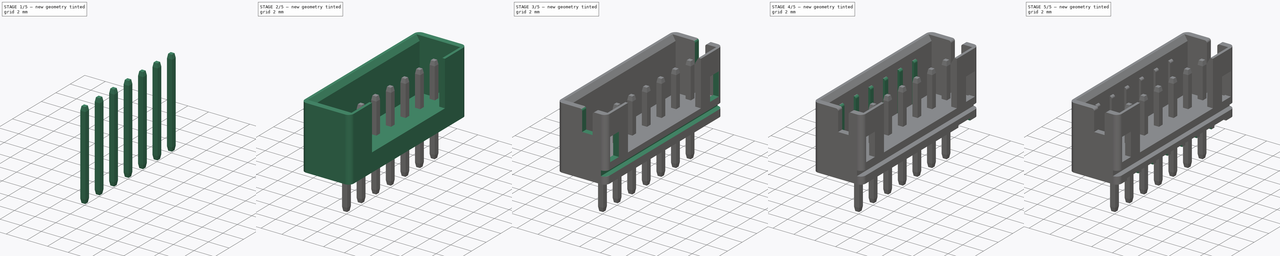
[diagram: build sequence overview — one tinted view per stage of 5, left to right]
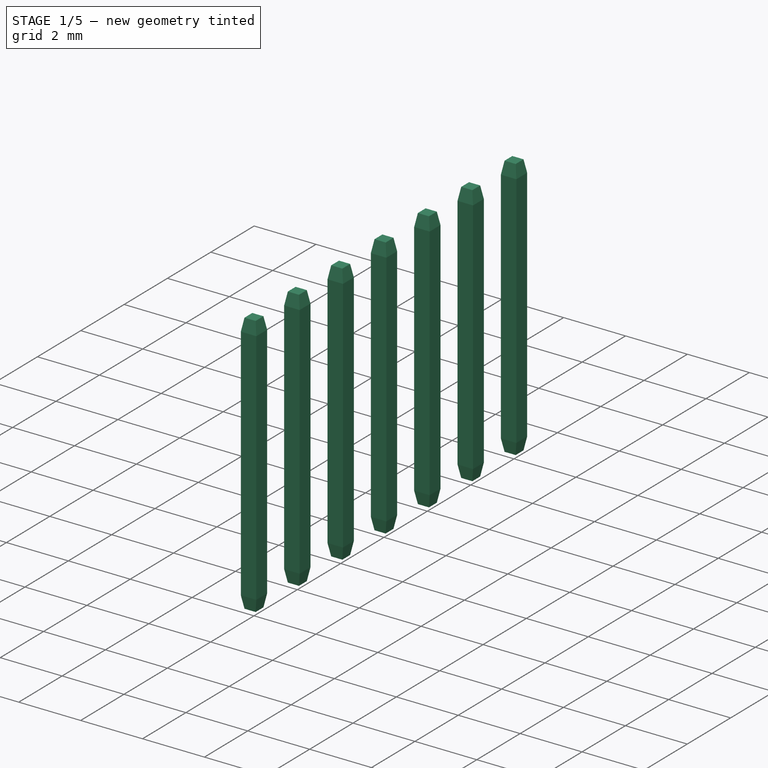
[diagram: stage 1 of 5 — iso view after this stage's code; geometry added in this stage tinted green]
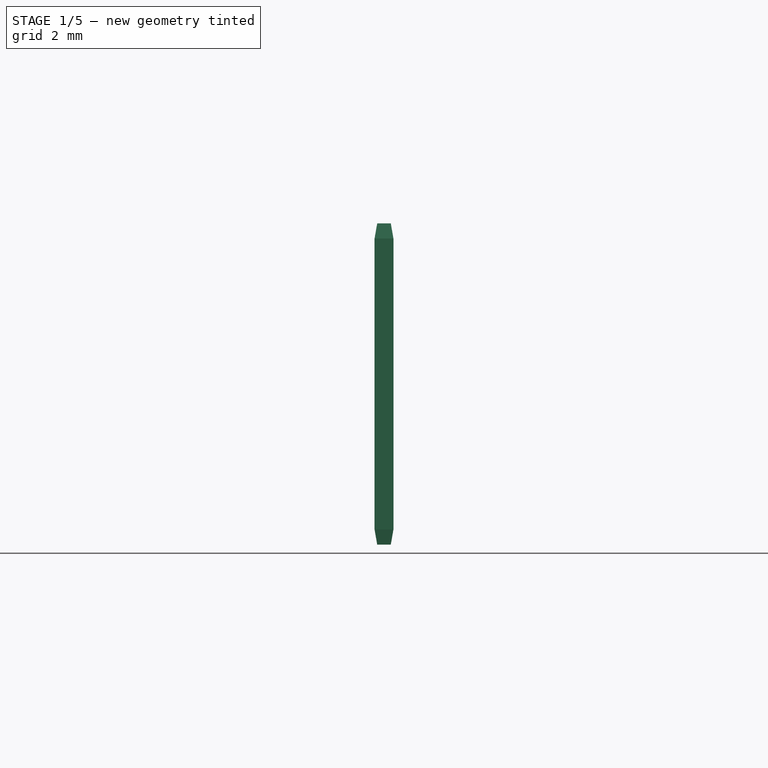
[diagram: stage 1 of 5 — front view after this stage's code; geometry added in this stage tinted green]
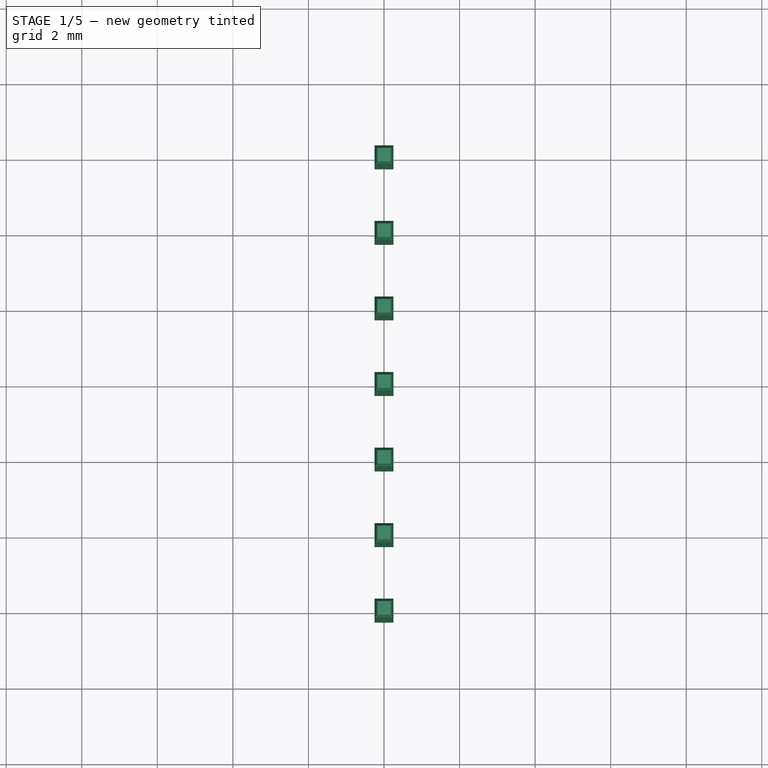
[diagram: stage 1 of 5 — top view after this stage's code; geometry added in this stage tinted green]
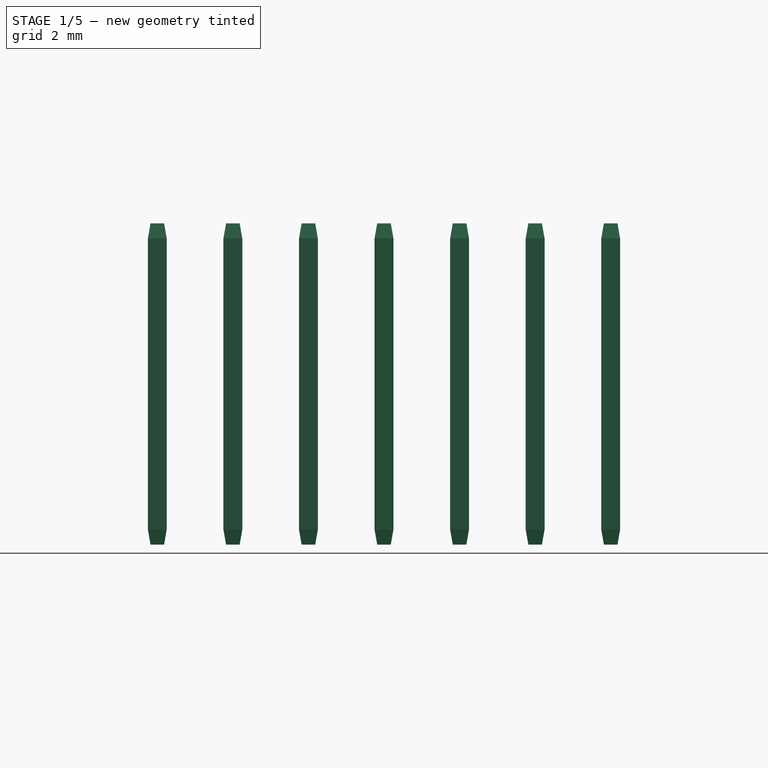
[diagram: stage 1 of 5 — right view after this stage's code; geometry added in this stage tinted green]
FCSTD DOCUMENT  (FreeCAD 1.0R38641 +468 (Git))
Label: 440054-1
License: All rights reserved
objects: Sketcher::SketchObject×12, PartDesign::Pocket×9, PartDesign::Pad×3, PartDesign::LinearPattern×3, PartDesign::Body×2, Spreadsheet::Sheet×1, PartDesign::Plane×1, PartDesign::Line×1, PartDesign::Chamfer×1, Part::FeaturePython×1
note: 74 computed .brp shape members not serialized (recipe doc carries the construction recipe); baked Part::Feature solids carry a one-line shape summary decoded from their .brp

FEATURE [PartDesign::Body] Body
  AllowCompound = false
  Group = -> [DatumPlane,DatumLine,Sketch001,Pad,Sketch,Pocket,Sketch003,Pocket001,Sketch004,Pocket002,Sketch005,Pocket003,Sketch006,Pocket004,Sketch007,Pocket005,Sketch008,Pad001,LinearPattern,Sketch009,Pocket006,Sketch010,Pocket007,LinearPattern001,Sketch011,Pocket008,LinearPattern002]
  Origin = -> Origin
  Tip = -> LinearPattern002
FEATURE [Sketcher::SketchObject] Sketch013
  ArcFitTolerance = 0
  AttachmentSupport = -> [XY_Plane001]
  FullyConstrained = true
  MakeInternals = false
  MapMode = 5
  sketch-geometry (4):
    g0: LineSegment StartX=-0.25 StartY=0.25 StartZ=0 EndX=0.25 EndY=0.25 EndZ=0
    g1: LineSegment StartX=0.25 StartY=0.25 StartZ=0 EndX=0.25 EndY=-0.25 EndZ=0
    g2: LineSegment StartX=0.25 StartY=-0.25 StartZ=0 EndX=-0.25 EndY=-0.25 EndZ=0
    g3: LineSegment StartX=-0.25 StartY=-0.25 StartZ=0 EndX=-0.25 EndY=0.25 EndZ=0
  constraints (11):
    c: Coincident(g0,g1)
    c: Coincident(g1,g2)
    c: Coincident(g2,g3)
    c: Coincident(g3,g0)
    c: Horizontal(g0)
    c: Horizontal(g2)
    c: Vertical(g1)
    c: Vertical(g3)
    c: Equal(g1,g0)
    c: Symmetric(g0,g2,g-1)
    c: DistanceX(g0,g0) = 0.5
FEATURE [PartDesign::Pad] Pad002
  Direction = (0,0,1)
  Length = 5.1
  Length2 = 3.4
  Profile = -> Sketch013
  ReferenceAxis = -> Sketch013 [N_Axis]
  Suppressed = false
  Type = 4
FEATURE [PartDesign::Chamfer] Chamfer
  Angle = 45
  Base = -> Pad002 [Face6,Face5]
  BaseFeature = -> Pad002
  ChamferType = 1
  FlipDirection = false
  Size = 0.4
  Size2 = 0.07
  SupportTransform = false
  Suppressed = false
  UseAllEdges = false
FEATURE [PartDesign::Body] Body001
  AllowCompound = false
  Group = -> [Sketch013,Pad002,Chamfer]
  Origin = -> Origin001
  Tip = -> Chamfer
FEATURE [Part::FeaturePython] Array  # Draft array (typed FeaturePython)
  Angle = 360
  ArrayType = 0
  Axis = (0,0,1)
  Base = -> Body001
  Center = (0,0,0)
  Count = 7
  Fuse = false
  IntervalAxis = (0,0,0)
  IntervalX = (100,0,0)
  IntervalY = (0,-2,0)
  IntervalZ = (0,0,100)
  NumberCircles = 3
  NumberPolar = 5
  NumberX = 1
  NumberY = 7
  NumberZ = 1
  RadialDistance = 50
  Symmetry = 1
  TangentialDistance = 25
  expr: .IntervalY.y = -<<Master>>.pin_pitch
  expr: NumberY = <<Master>>.pins
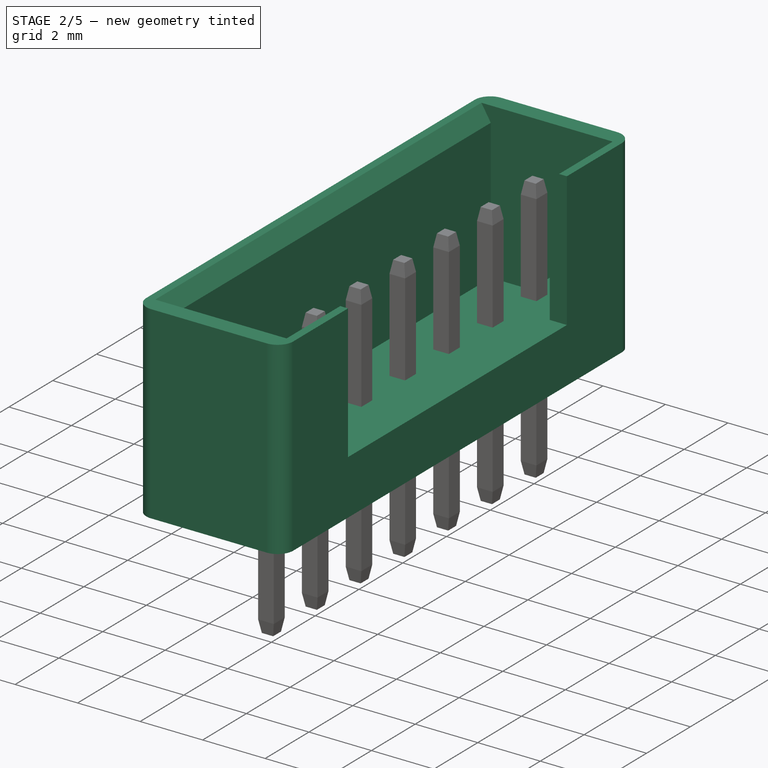
[diagram: stage 2 of 5 — iso view after this stage's code; geometry added in this stage tinted green]
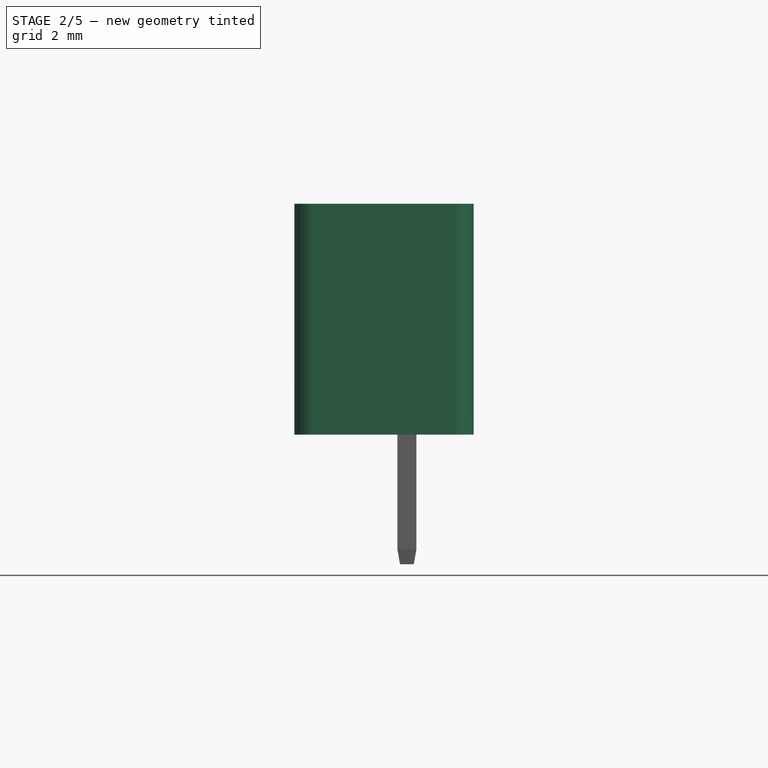
[diagram: stage 2 of 5 — front view after this stage's code; geometry added in this stage tinted green]
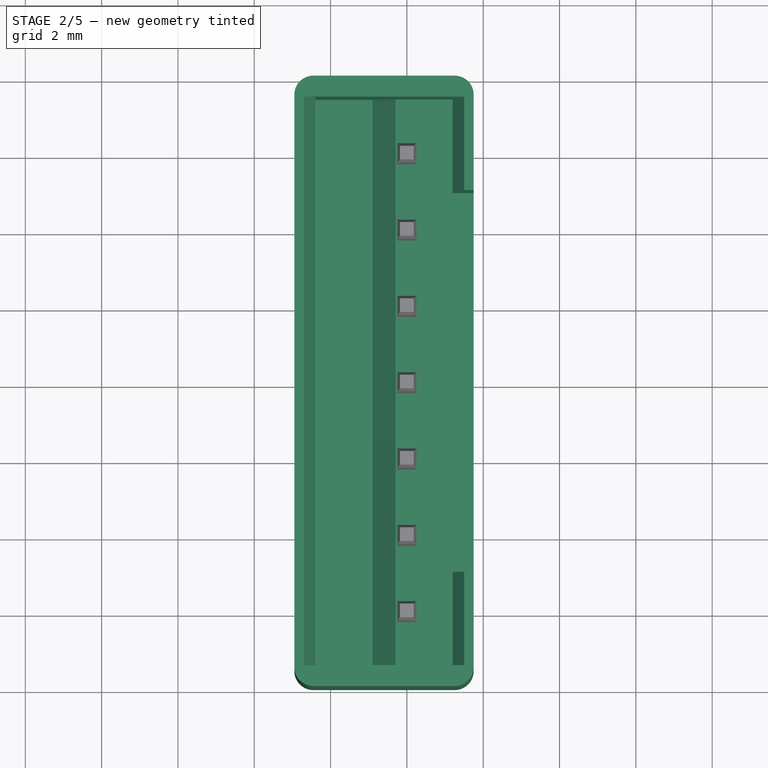
[diagram: stage 2 of 5 — top view after this stage's code; geometry added in this stage tinted green]
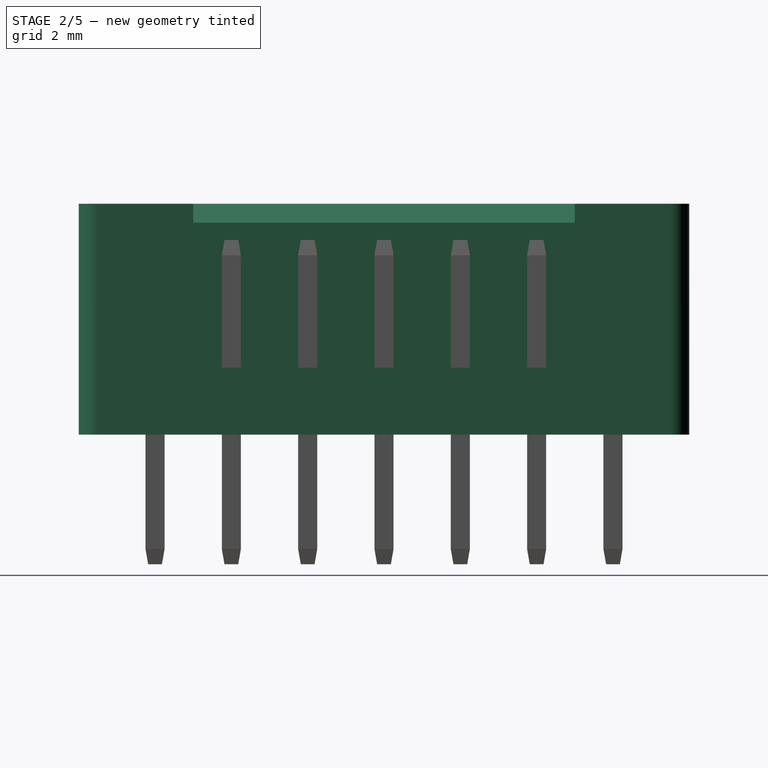
[diagram: stage 2 of 5 — right view after this stage's code; geometry added in this stage tinted green]
FEATURE [Spreadsheet::Sheet] Spreadsheet  label="Master"
  cells = A1='Constants; A2='pins; B2(pins)=7; D2='Number of pins  2 - 16; A4='pin pitch; B4(pin_pitch)==2 mm; D4='Pin pitch; A5='pin offset; B5(pin_offset)==1.75 mm; D5='Pin offset from front edge; A6='height; B6(height)==6.05 mm; D6='Height of housing; A7='width; B7(width)==4.7 mm; D7='Width of housing; A8='width int; B8(width_int)==3.6 mm; D8='Width of opening; A9='base; B9(base)==1.75 mm; D9='Base thickness; A10='rib width; B10(rib_w)==0.45 mm; D10='rib width; A12='Calculated; A13='length pin; B13(length_pin)==length_tot - 4 mm; D13='Dim A: Total with of pins; A14='length tot; B14(length_tot)==pins * pin_pitch + 2 mm; D14='Dim B: Length of housing, Valid lengths: 6.0, 8.0, 10.0, 12.0, 14.0, 16.0, 18.0, 20.0, 22.0, 24.0, 26.0, 28.0, 30.0, 32.0, 34.0; A15='length int; B15(length_int)==length_tot - 1.1 mm; D15='Dim C: Length of opening; A17='center; B17(center_len)==length_pin / 2; C17(center_offset)==width / 2 - pin_offset; D17='Center of connector location; A18='open; B18(open_short)==(length_int - length_pin) / 2; C18(open_long)==length_int - open_short; D18='Opening lengths relative to pin 1; A19='slot; B19(slot)==length_tot - (pins <= 2 ? 2.65 mm : 3 mm) * 2; D19='Front slot opening length; A20='pat len; B20(pat_len)==pins <= 2 ? length_tot / 2 - rib_w / 2 : length_pin - pin_pitch; D20='Pattern length for ribs between pins, special case for 2 pins; A21='pat cnt; B21(pat_cnt)==pins <= 2 ? 2 : pins - 1; D21='Pattern occurences for ribs between pins, minimum pattern is 2; A22='rib height; B22(rib_h)==height - 1.2 mm; D22='Height of ribs at back of connector
FEATURE [PartDesign::Plane] DatumPlane
  AttachmentOffset = pos=(0,0,6.05) rot=(0,0,1;0rad)
  AttachmentSupport = -> [XY_Plane]
  Length = 60
  MapMode = 5
  Placement = pos=(0,0,6.05) rot=(0,0,1;0rad)
  ResizeMode = 0
  Width = 60
  expr: .AttachmentOffset.Base.z = <<Master>>.height
FEATURE [PartDesign::Line] DatumLine
  AttacherType = Attacher::AttachEngineLine
  AttachmentOffset = pos=(-0.6,-6,0) rot=(0,0,1;0rad)
  AttachmentSupport = -> [Z_Axis]
  Length = 20
  MapMode = 29
  Placement = pos=(-0.6,-6,0) rot=(0,0,1;0rad)
  ResizeMode = 0
  expr: .AttachmentOffset.Base.x = -<<Master>>.center_offset
  expr: .AttachmentOffset.Base.y = -<<Master>>.center_len
FEATURE [Sketcher::SketchObject] Sketch001
  ArcFitTolerance = 0
  AttachmentSupport = -> [XY_Plane]
  ExternalGeometry = -> [DatumLine]
  FullyConstrained = true
  MakeInternals = false
  MapMode = 5
  expr: Constraints[23] = <<Master>>.width
  expr: Constraints[24] = <<Master>>.length_tot
  sketch-geometry (11):
    g0: LineSegment StartX=-2.95 StartY=1.5 StartZ=0 EndX=-2.95 EndY=-13.5 EndZ=0
    g1: LineSegment StartX=-2.45 StartY=-14 StartZ=0 EndX=1.25 EndY=-14 EndZ=0
    g2: LineSegment StartX=1.75 StartY=-13.5 StartZ=0 EndX=1.75 EndY=1.5 EndZ=0
    g3: LineSegment StartX=1.25 StartY=2 StartZ=0 EndX=-2.45 EndY=2 EndZ=0
    g4: ArcOfCircle CenterX=-2.45 CenterY=1.5 CenterZ=0 NormalX=0 NormalY=0 NormalZ=1 AngleXU=0 Radius=0.5 StartAngle=1.5708 EndAngle=3.14159
    g5: ArcOfCircle CenterX=-2.45 CenterY=-13.5 CenterZ=0 NormalX=0 NormalY=0 NormalZ=1 AngleXU=0 Radius=0.5 StartAngle=3.14159 EndAngle=4.71239
    g6: ArcOfCircle CenterX=1.25 CenterY=-13.5 CenterZ=0 NormalX=0 NormalY=0 NormalZ=1 AngleXU=0 Radius=0.5 StartAngle=4.71239 EndAngle=6.28319
    g7: ArcOfCircle CenterX=1.25 CenterY=1.5 CenterZ=0 NormalX=0 NormalY=0 NormalZ=1 AngleXU=0 Radius=0.5 StartAngle=0 EndAngle=1.5708
    g8: GeomPoint [constr] X=-2.95 Y=2 Z=0
    g9: GeomPoint [constr] X=1.75 Y=-14 Z=0
    g10: GeomPoint [constr] X=-2.95 Y=-14 Z=0
  constraints (25):
    c: Tangent(g0,g4) = -1.5708
    c: Tangent(g0,g5) = -1.5708
    c: Tangent(g1,g5) = -1.5708
    c: Tangent(g1,g6) = -1.5708
    c: Tangent(g2,g6) = -1.5708
    c: Tangent(g2,g7) = -1.5708
    c: Tangent(g3,g7) = -1.5708
    c: Tangent(g3,g4) = -1.5708
    c: Vertical(g0)
    c: Vertical(g2)
    c: Horizontal(g1)
    c: Horizontal(g3)
    c: Equal(g4,g5)
    c: Equal(g5,g6)
    c: Equal(g6,g7)
    c: PointOnObject(g8,g0)
    c: PointOnObject(g8,g3)
    c: PointOnObject(g9,g1)
    c: PointOnObject(g9,g2)
    c: Radius(g7) = 0.5
    c: Symmetric(g8,g9,g-3)
    c: PointOnObject(g10,g0)
    c: PointOnObject(g10,g1)
    c: DistanceX(g10,g9) = 4.7
    c: DistanceY(g10,g8) = 16
FEATURE [PartDesign::Pad] Pad
  Direction = (0,0,1)
  Length = 6.05
  Length2 = 10
  Profile = -> Sketch001
  ReferenceAxis = -> Sketch001 [N_Axis]
  Suppressed = false
  Type = 0
  expr: Length = <<Master>>.height
FEATURE [Sketcher::SketchObject] Sketch
  ArcFitTolerance = 1e-06
  AttachmentSupport = -> [DatumPlane]
  ExternalGeometry = -> [DatumLine]
  FullyConstrained = true
  MakeInternals = false
  MapMode = 5
  Placement = pos=(0,0,6.05) rot=(0,0,1;0rad)
  expr: Constraints[10] = <<Master>>.length_int
  expr: Constraints[9] = <<Master>>.width_int
  sketch-geometry (4):
    g0: LineSegment StartX=-2.4 StartY=1.45 StartZ=0 EndX=-2.4 EndY=-13.45 EndZ=0
    g1: LineSegment StartX=-2.4 StartY=-13.45 StartZ=0 EndX=1.2 EndY=-13.45 EndZ=0
    g2: LineSegment StartX=1.2 StartY=-13.45 StartZ=0 EndX=1.2 EndY=1.45 EndZ=0
    g3: LineSegment StartX=1.2 StartY=1.45 StartZ=0 EndX=-2.4 EndY=1.45 EndZ=0
  constraints (11):
    c: Coincident(g0,g1)
    c: Coincident(g1,g2)
    c: Coincident(g2,g3)
    c: Coincident(g3,g0)
    c: Vertical(g0)
    c: Vertical(g2)
    c: Horizontal(g1)
    c: Horizontal(g3)
    c: Symmetric(g0,g1,g-3)
    c: Distance(g1,g1) = 3.6
    c: DistanceY(g0,g0) = 14.9
FEATURE [PartDesign::Pocket] Pocket
  BaseFeature = -> Pad
  Direction = (0,0,-1)
  Length = 4.3
  Length2 = 5
  Profile = -> Sketch
  ReferenceAxis = -> Sketch [N_Axis]
  Suppressed = false
  Type = 0
  expr: Length = <<Master>>.height - <<Master>>.base
FEATURE [Sketcher::SketchObject] Sketch003
  ArcFitTolerance = 0
  AttachmentSupport = -> [XZ_Plane]
  ExternalGeometry = -> [DatumLine]
  FullyConstrained = true
  MakeInternals = false
  MapMode = 5
  Placement = pos=(0,0,0) rot=(1,0,0;1.5708rad)
  expr: Constraints[12] = <<Master>>.width_int
  expr: Constraints[31] = <<Master>>.height
  expr: Constraints[32] = <<Master>>.base
  sketch-geometry (12):
    g0: LineSegment StartX=1.5 StartY=6.05 StartZ=0 EndX=1.2 EndY=6.05 EndZ=0
    g1: LineSegment StartX=1.2 StartY=6.05 StartZ=0 EndX=1.2 EndY=5.55 EndZ=0
    g2: LineSegment StartX=1.2 StartY=5.55 StartZ=0 EndX=1.5 EndY=6.05 EndZ=0
    g3: LineSegment StartX=-2.7 StartY=6.05 StartZ=0 EndX=-2.4 EndY=5.55 EndZ=0
    g4: LineSegment StartX=-2.4 StartY=5.55 StartZ=0 EndX=-2.4 EndY=6.05 EndZ=0
    g5: LineSegment StartX=-2.4 StartY=6.05 StartZ=0 EndX=-2.7 EndY=6.05 EndZ=0
    g6: LineSegment [constr] StartX=-2.4 StartY=6.05 StartZ=0 EndX=1.2 EndY=6.05 EndZ=0
    g7: LineSegment StartX=-2.4 StartY=1.75 StartZ=0 EndX=-0.3 EndY=1.75 EndZ=0
    g8: LineSegment StartX=-0.3 StartY=1.75 StartZ=0 EndX=-0.9 EndY=1.07 EndZ=0
    g9: LineSegment StartX=-0.9 StartY=1.07 StartZ=0 EndX=-2.4 EndY=1.07 EndZ=0
    g10: LineSegment StartX=-2.4 StartY=1.07 StartZ=0 EndX=-2.4 EndY=1.75 EndZ=0
    g11: LineSegment [constr] StartX=-2.4 StartY=5.55 StartZ=0 EndX=-2.4 EndY=1.75 EndZ=0
  constraints (33):
    c: Horizontal(g0)
    c: Coincident(g0,g1)
    c: Coincident(g1,g2)
    c: Coincident(g2,g0)
    c: Coincident(g3,g4)
    c: Coincident(g4,g5)
    c: Coincident(g5,g3)
    c: Horizontal(g5)
    c: Coincident(g6,g4)
    c: Vertical(g1)
    c: Vertical(g4)
    c: Coincident(g6,g0)
    c: DistanceX(g6,g6) = 3.6
    c: Equal(g4,g1)
    c: Equal(g5,g0)
    c: DistanceX(g5,g5) = 0.3
    c: DistanceY(g4,g4) = 0.5
    c: Horizontal(g7)
    c: Coincident(g7,g8)
    c: Coincident(g8,g9)
    c: Coincident(g9,g10)
    c: Coincident(g10,g7)
    c: Vertical(g10)
    c: Horizontal(g9)
    c: Distance(g7,g7) = 2.1
    c: Distance(g9,g9) = 1.5
    c: DistanceY(g10,g10) = 0.68
    c: Symmetric(g4,g0,g-3)
    c: Coincident(g11,g3)
    c: Coincident(g11,g7)
    c: Vertical(g11)
    c: DistanceY(g-1,g3) = 6.05
    c: DistanceY(g-1,g7) = 1.75
FEATURE [PartDesign::Pocket] Pocket001
  BaseFeature = -> Pocket
  Direction = (0,1,-2e-16)
  Length = 1.45
  Length2 = 13.45
  Profile = -> Sketch003
  ReferenceAxis = -> Sketch003 [N_Axis]
  Suppressed = false
  Type = 4
  expr: Length = <<Master>>.open_short
  expr: Length2 = <<Master>>.open_long
FEATURE [Sketcher::SketchObject] Sketch004
  ArcFitTolerance = 1e-06
  AttachmentSupport = -> [DatumPlane]
  ExternalGeometry = -> [DatumLine]
  FullyConstrained = true
  MakeInternals = false
  MapMode = 5
  Placement = pos=(0,0,6.05) rot=(0,0,1;0rad)
  expr: Constraints[16] = <<Master>>.length_tot
  expr: Constraints[17] = <<Master>>.width / 2
  expr: Constraints[18] = (<<Master>>.width - <<Master>>.width_int) / 2
  expr: Constraints[19] = <<Master>>.slot
  sketch-geometry (7):
    g0: LineSegment StartX=1.2 StartY=-1 StartZ=0 EndX=1.2 EndY=-11 EndZ=0
    g1: LineSegment StartX=1.2 StartY=-11 StartZ=0 EndX=1.75 EndY=-11 EndZ=0
    g2: LineSegment StartX=1.75 StartY=-11 StartZ=0 EndX=1.75 EndY=-1 EndZ=0
    g3: LineSegment StartX=1.75 StartY=-1 StartZ=0 EndX=1.2 EndY=-1 EndZ=0
    g4: LineSegment [constr] StartX=-0.6 StartY=-6 StartZ=0 EndX=1.75 EndY=-6 EndZ=0
    g5: LineSegment [constr] StartX=1.75 StartY=-1 StartZ=0 EndX=1.75 EndY=2 EndZ=0
    g6: LineSegment [constr] StartX=1.75 StartY=-11 StartZ=0 EndX=1.75 EndY=-14 EndZ=0
  constraints (20):
    c: Coincident(g0,g1)
    c: Coincident(g1,g2)
    c: Coincident(g2,g3)
    c: Coincident(g3,g0)
    c: Vertical(g0)
    c: Vertical(g2)
    c: Horizontal(g1)
    c: Horizontal(g3)
    c: Coincident(g4,g-3)
    c: Horizontal(g4)
    c: Coincident(g5,g2)
    c: Vertical(g5)
    c: Coincident(g6,g1)
    c: Vertical(g6)
    c: Equal(g5,g6)
    c: Symmetric(g2,g1,g4)
    c: DistanceY(g6,g5) = 16
    c: Distance(g4,g4) = 2.35
    c: Distance(g1,g1) = 0.55
    c: DistanceY(g2,g2) = 10
FEATURE [PartDesign::Pocket] Pocket002
  BaseFeature = -> Pocket001
  Direction = (0,0,-1)
  Length = 4.3
  Length2 = 5
  Profile = -> Sketch004
  ReferenceAxis = -> Sketch004 [N_Axis]
  Suppressed = false
  Type = 0
  expr: Length = <<Master>>.height - <<Master>>.base
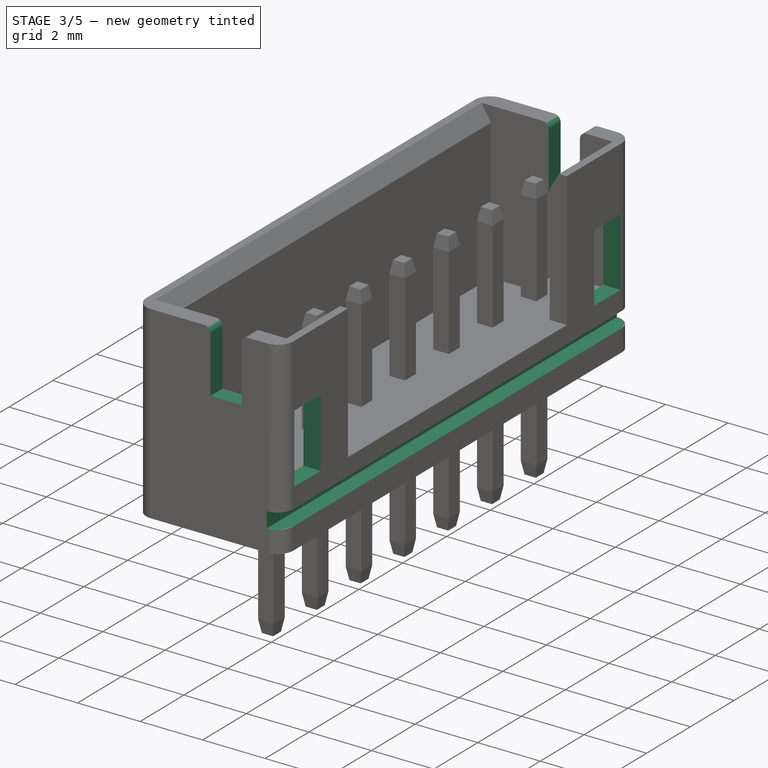
[diagram: stage 3 of 5 — iso view after this stage's code; geometry added in this stage tinted green]
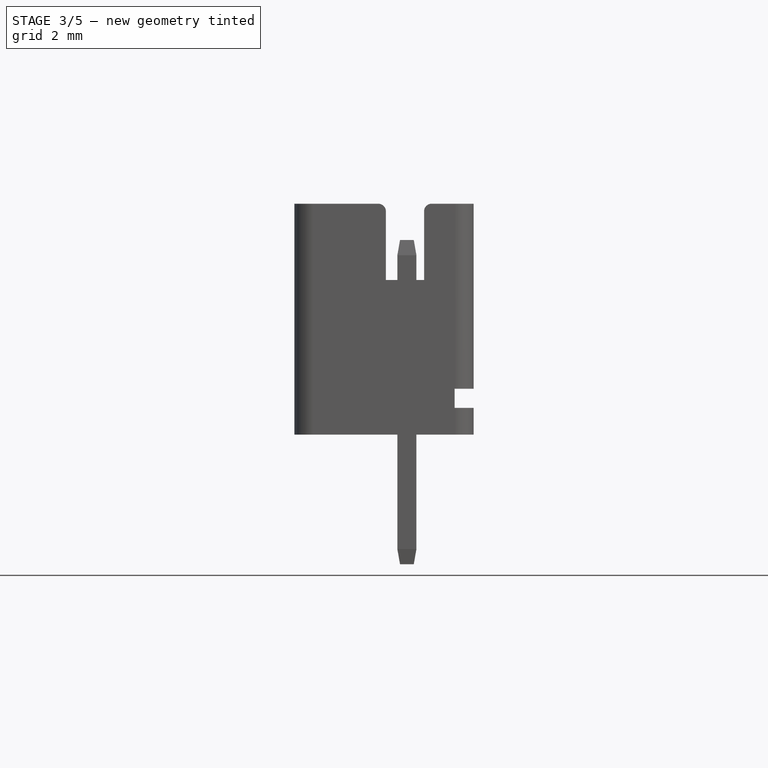
[diagram: stage 3 of 5 — front view after this stage's code; geometry added in this stage tinted green]
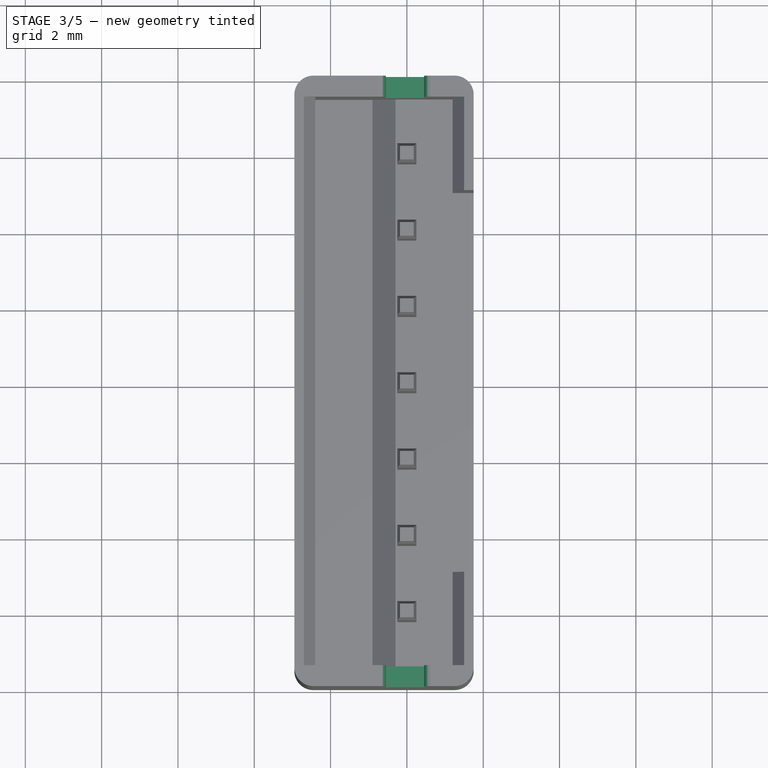
[diagram: stage 3 of 5 — top view after this stage's code; geometry added in this stage tinted green]
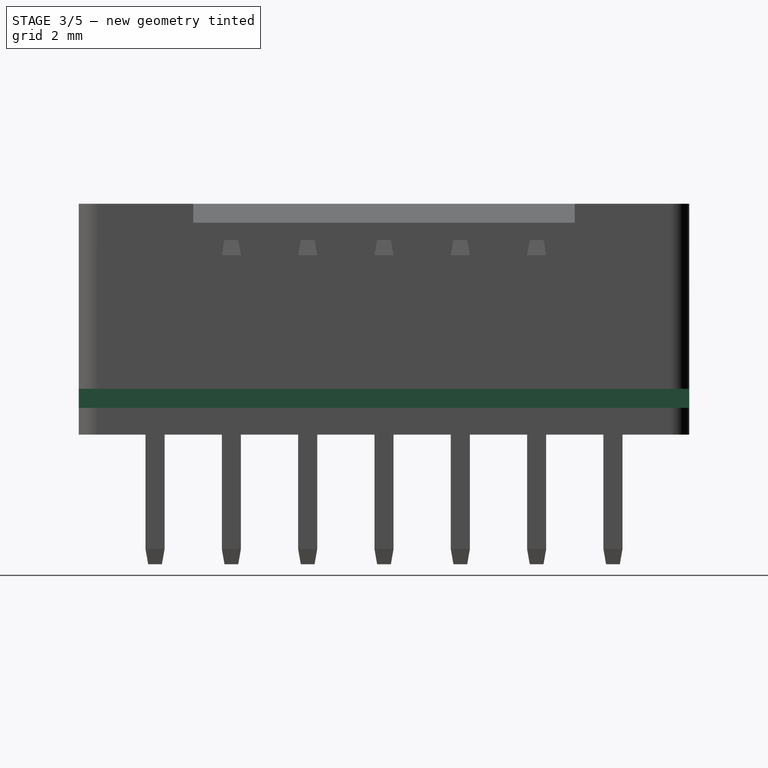
[diagram: stage 3 of 5 — right view after this stage's code; geometry added in this stage tinted green]
FEATURE [Sketcher::SketchObject] Sketch005
  ArcFitTolerance = 0
  AttachmentSupport = -> [YZ_Plane]
  ExternalGeometry = -> [DatumLine]
  FullyConstrained = true
  MakeInternals = false
  MapMode = 5
  Placement = pos=(0,0,0) rot=(0.57735,0.57735,0.57735;2.0944rad)
  expr: Constraints[27] = <<Master>>.length_tot
  expr: Constraints[29] = <<Master>>.length_int
  expr: Constraints[30] = <<Master>>.length_int - 1.2 mm * 2
  sketch-geometry (11):
    g0: LineSegment StartX=0.25 StartY=4.03 StartZ=0 EndX=1.45 EndY=4.03 EndZ=0
    g1: LineSegment StartX=1.45 StartY=4.03 StartZ=0 EndX=1.45 EndY=1.83 EndZ=0
    g2: LineSegment StartX=1.45 StartY=1.83 StartZ=0 EndX=0.25 EndY=1.83 EndZ=0
    g3: LineSegment StartX=0.25 StartY=1.83 StartZ=0 EndX=0.25 EndY=4.03 EndZ=0
    g4: LineSegment StartX=-13.45 StartY=4.03 StartZ=0 EndX=-12.25 EndY=4.03 EndZ=0
    g5: LineSegment StartX=-12.25 StartY=4.03 StartZ=0 EndX=-12.25 EndY=1.83 EndZ=0
    g6: LineSegment StartX=-12.25 StartY=1.83 StartZ=0 EndX=-13.45 EndY=1.83 EndZ=0
    g7: LineSegment StartX=-13.45 StartY=1.83 StartZ=0 EndX=-13.45 EndY=4.03 EndZ=0
    g8: LineSegment [constr] StartX=-12.25 StartY=1.83 StartZ=0 EndX=0.25 EndY=1.83 EndZ=0
    g9: LineSegment [constr] StartX=2 StartY=1.83 StartZ=0 EndX=1.45 EndY=1.83 EndZ=0
    g10: LineSegment [constr] StartX=-13.45 StartY=1.83 StartZ=0 EndX=-14 EndY=1.83 EndZ=0
  constraints (31):
    c: Coincident(g0,g1)
    c: Coincident(g1,g2)
    c: Coincident(g2,g3)
    c: Coincident(g3,g0)
    c: Horizontal(g0)
    c: Horizontal(g2)
    c: Vertical(g1)
    c: Vertical(g3)
    c: Coincident(g4,g5)
    c: Coincident(g5,g6)
    c: Coincident(g6,g7)
    c: Coincident(g7,g4)
    c: Horizontal(g4)
    c: Horizontal(g6)
    c: Vertical(g5)
    c: Vertical(g7)
    c: Equal(g4,g0)
    c: Equal(g5,g1)
    c: Coincident(g8,g5)
    c: Coincident(g8,g2)
    c: DistanceY(g7,g7) = 2.2
    c: Coincident(g9,g1)
    c: Horizontal(g9)
    c: Coincident(g10,g6)
    c: Horizontal(g10)
    c: Equal(g9,g10)
    c: Symmetric(g5,g2,g-3)
    c: DistanceX(g10,g9) = 16
    c: DistanceY(g-1,g9) = 1.83
    c: DistanceX(g6,g1) = 14.9
    c: DistanceX(g8,g8) = 12.5
FEATURE [PartDesign::Pocket] Pocket003
  BaseFeature = -> Pocket002
  Direction = (-1,0,0)
  Length = 5
  Length2 = 5
  Profile = -> Sketch005
  ReferenceAxis = -> Sketch005 [N_Axis]
  Reversed = true
  Suppressed = false
  Type = 1
FEATURE [Sketcher::SketchObject] Sketch006
  ArcFitTolerance = 0
  AttachmentSupport = -> [XZ_Plane]
  ExternalGeometry = -> [DatumLine]
  FullyConstrained = true
  MakeInternals = false
  MapMode = 5
  Placement = pos=(0,0,0) rot=(1,0,0;1.5708rad)
  expr: Constraints[13] = <<Master>>.height
  expr: Constraints[20] = <<Master>>.width / 2
  sketch-geometry (8):
    g0: LineSegment StartX=0.45 StartY=5.85 StartZ=0 EndX=0.45 EndY=4.05 EndZ=0
    g1: LineSegment StartX=0.45 StartY=4.05 StartZ=0 EndX=-0.55 EndY=4.05 EndZ=0
    g2: ArcOfCircle CenterX=0.65 CenterY=5.85 CenterZ=0 NormalX=0 NormalY=0 NormalZ=1 AngleXU=0 Radius=0.2 StartAngle=1.5708 EndAngle=3.14159
    g3: LineSegment StartX=-0.55 StartY=4.05 StartZ=0 EndX=-0.55 EndY=5.85 EndZ=0
    g4: LineSegment StartX=0.65 StartY=6.05 StartZ=0 EndX=-0.75 EndY=6.05 EndZ=0
    g5: ArcOfCircle CenterX=-0.75 CenterY=5.85 CenterZ=0 NormalX=0 NormalY=0 NormalZ=1 AngleXU=0 Radius=0.2 StartAngle=0 EndAngle=1.5708
    g6: LineSegment [constr] StartX=0.45 StartY=4.05 StartZ=0 EndX=1.75 EndY=4.05 EndZ=0
    g7: LineSegment [constr] StartX=-0.55 StartY=4.05 StartZ=0 EndX=-0.6 EndY=4.05 EndZ=0
  constraints (22):
    c: Coincident(g0,g1)
    c: Horizontal(g1)
    c: Vertical(g0)
    c: Coincident(g3,g1)
    c: Vertical(g3)
    c: Horizontal(g4)
    c: Equal(g5,g2)
    c: Tangent(g4,g2) = -1.5708
    c: Tangent(g5,g4) = -1.5708
    c: Tangent(g5,g3) = -1.5708
    c: Tangent(g0,g2) = -1.5708
    c: DistanceX(g1,g1) = 1
    c: Radius(g2) = 0.2
    c: DistanceY(g-1,g2) = 6.05
    c: Coincident(g6,g0)
    c: Horizontal(g6)
    c: DistanceY(g1,g4) = 2
    c: Coincident(g7,g1)
    c: PointOnObject(g7,g-3)
    c: Horizontal(g7)
    c: DistanceX(g7,g6) = 2.35
    c: DistanceX(g6,g6) = 1.3
FEATURE [PartDesign::Pocket] Pocket004
  BaseFeature = -> Pocket003
  Direction = (0,1,-2e-16)
  Length = 5
  Length2 = 5
  Midplane = true
  Profile = -> Sketch006
  ReferenceAxis = -> Sketch006 [N_Axis]
  Suppressed = false
  Type = 1
FEATURE [Sketcher::SketchObject] Sketch007
  ArcFitTolerance = 0
  AttachmentSupport = -> [XZ_Plane]
  ExternalGeometry = -> [DatumLine]
  FullyConstrained = true
  MakeInternals = false
  MapMode = 5
  Placement = pos=(0,0,0) rot=(1,0,0;1.5708rad)
  expr: Constraints[16] = <<Master>>.width / 2
  sketch-geometry (6):
    g0: LineSegment StartX=1.25 StartY=1.2 StartZ=0 EndX=1.75 EndY=1.2 EndZ=0
    g1: LineSegment StartX=1.75 StartY=1.2 StartZ=0 EndX=1.75 EndY=0.7 EndZ=0
    g2: LineSegment StartX=1.75 StartY=0.7 StartZ=0 EndX=1.25 EndY=0.7 EndZ=0
    g3: LineSegment StartX=1.25 StartY=0.7 StartZ=0 EndX=1.25 EndY=1.2 EndZ=0
    g4: LineSegment [constr] StartX=1.75 StartY=0.7 StartZ=0 EndX=1.75 EndY=0 EndZ=0
    g5: LineSegment [constr] StartX=1.75 StartY=0 StartZ=0 EndX=-0.6 EndY=0 EndZ=0
  constraints (18):
    c: Coincident(g0,g1)
    c: Coincident(g1,g2)
    c: Coincident(g2,g3)
    c: Coincident(g3,g0)
    c: Horizontal(g0)
    c: Horizontal(g2)
    c: Vertical(g1)
    c: Vertical(g3)
    c: Equal(g0,g1)
    c: DistanceY(g1,g1) = 0.5
    c: Coincident(g4,g1)
    c: Vertical(g4)
    c: Coincident(g5,g4)
    c: Horizontal(g5)
    c: PointOnObject(g5,g-3)
    c: DistanceY(g4,g4) = 0.7
    c: DistanceX(g5,g5) = 2.35
    c: PointOnObject(g-1,g5)
FEATURE [PartDesign::Pocket] Pocket005
  BaseFeature = -> Pocket004
  Direction = (0,1,-2e-16)
  Length = 5
  Length2 = 5
  Midplane = true
  Profile = -> Sketch007
  ReferenceAxis = -> Sketch007 [N_Axis]
  Suppressed = false
  Type = 1
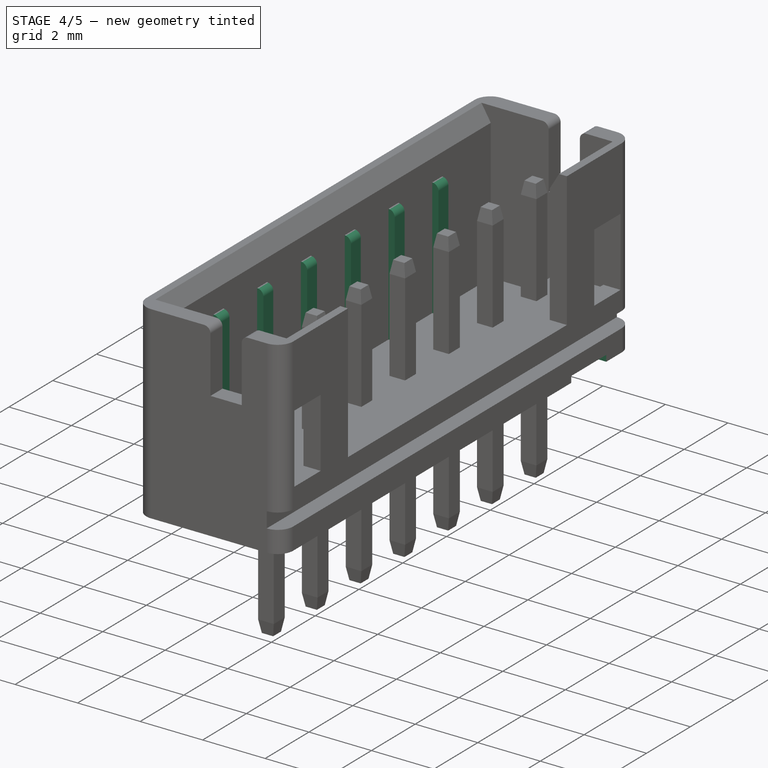
[diagram: stage 4 of 5 — iso view after this stage's code; geometry added in this stage tinted green]
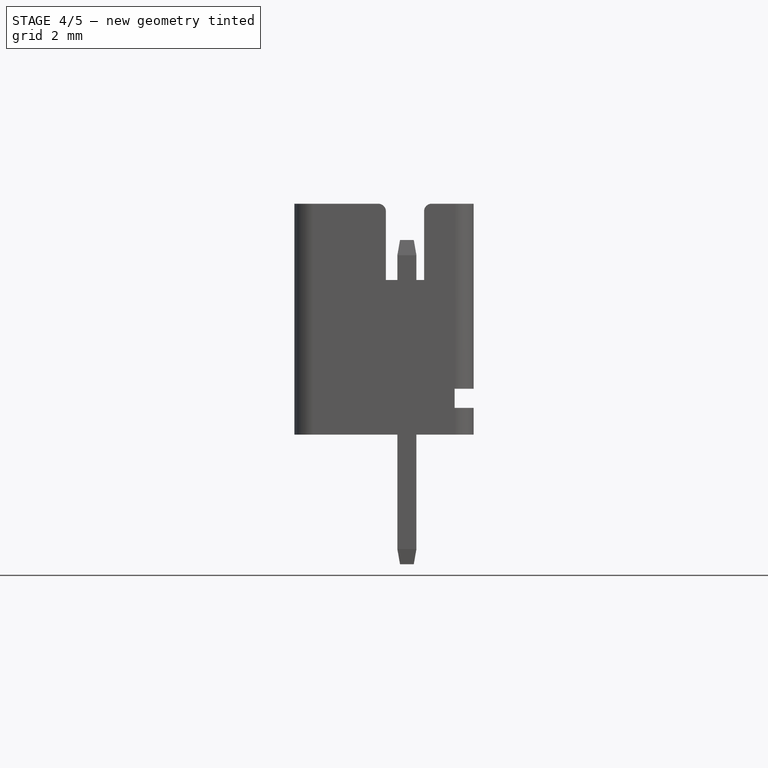
[diagram: stage 4 of 5 — front view after this stage's code; geometry added in this stage tinted green]
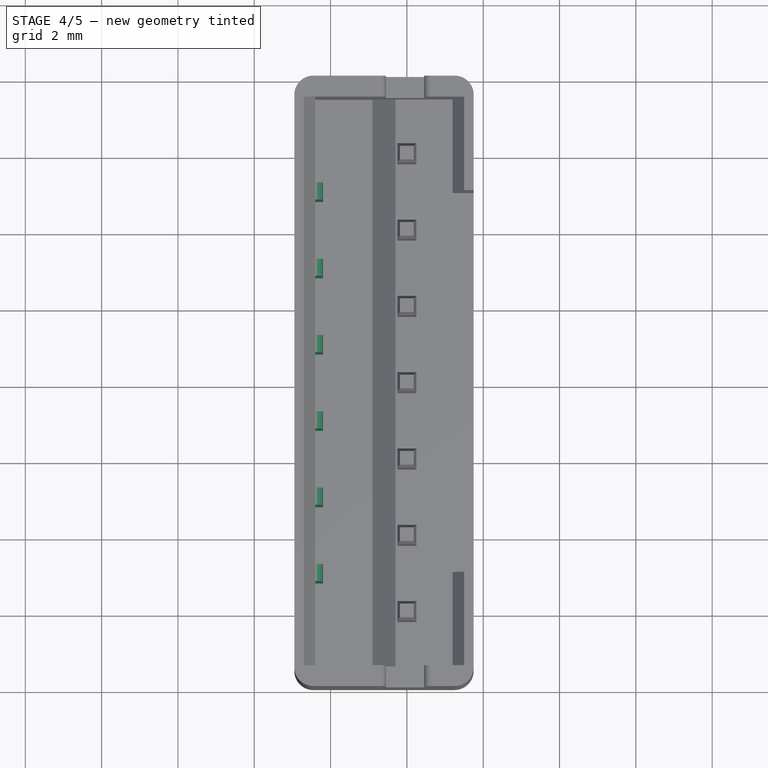
[diagram: stage 4 of 5 — top view after this stage's code; geometry added in this stage tinted green]
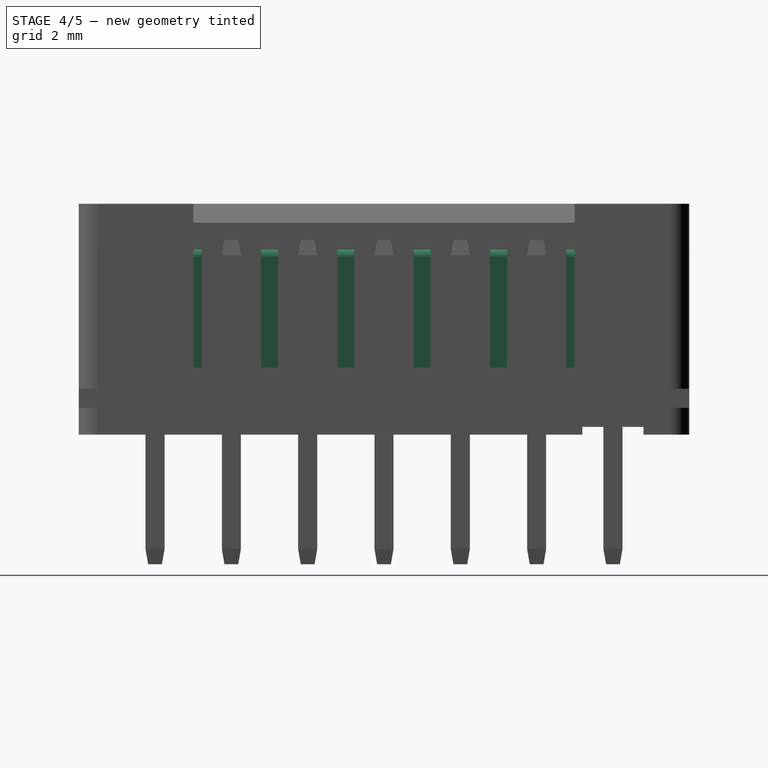
[diagram: stage 4 of 5 — right view after this stage's code; geometry added in this stage tinted green]
FEATURE [Sketcher::SketchObject] Sketch008
  ArcFitTolerance = 0
  AttachmentSupport = -> [XY_Plane]
  ExternalGeometry = -> [DatumLine]
  FullyConstrained = true
  MakeInternals = false
  MapMode = 5
  expr: Constraints[13] = <<Master>>.rib_w
  expr: Constraints[15] = <<Master>>.pin_pitch
  expr: Constraints[16] = <<Master>>.width_int / 2
  sketch-geometry (6):
    g0: LineSegment StartX=-2.4 StartY=-0.775 StartZ=0 EndX=-2.4 EndY=-1.225 EndZ=0
    g1: LineSegment StartX=-2.4 StartY=-1.225 StartZ=0 EndX=-2.2 EndY=-1.225 EndZ=0
    g2: LineSegment StartX=-2.2 StartY=-1.225 StartZ=0 EndX=-2.2 EndY=-0.775 EndZ=0
    g3: LineSegment StartX=-2.2 StartY=-0.775 StartZ=0 EndX=-2.4 EndY=-0.775 EndZ=0
    g4: LineSegment [constr] StartX=-2.4 StartY=-0.775 StartZ=0 EndX=-2.4 EndY=0 EndZ=0
    g5: LineSegment [constr] StartX=-2.4 StartY=-1.225 StartZ=0 EndX=-2.4 EndY=-2 EndZ=0
  constraints (18):
    c: Coincident(g0,g1)
    c: Coincident(g1,g2)
    c: Coincident(g2,g3)
    c: Coincident(g3,g0)
    c: Vertical(g0)
    c: Vertical(g2)
    c: Horizontal(g1)
    c: Horizontal(g3)
    c: Coincident(g4,g0)
    c: Vertical(g4)
    c: Coincident(g5,g0)
    c: Vertical(g5)
    c: Equal(g4,g5)
    c: Distance(g0,g0) = 0.45
    c: DistanceX(g5,g1) = 0.2
    c: DistanceY(g5,g4) = 2
    c: DistanceX(g5,g-3) = 1.8
    c: PointOnObject(g4,g-1)
FEATURE [PartDesign::Pad] Pad001
  BaseFeature = -> Pocket005
  Direction = (0,0,1)
  Length = 4.85
  Length2 = 10
  Profile = -> Sketch008
  ReferenceAxis = -> Sketch008 [N_Axis]
  Suppressed = false
  Type = 0
  expr: Length = <<Master>>.rib_h
FEATURE [PartDesign::LinearPattern] LinearPattern
  BaseFeature = -> Pad001
  Direction = -> Sketch008 [V_Axis]
  Length = 10
  Mode = 0
  Occurrences = 6
  Offset = 2
  Originals = -> [Pad001]
  Reversed = true
  Suppressed = false
  TransformMode = 0
  expr: Length = <<Master>>.pat_len
  expr: Occurrences = <<Master>>.pat_cnt
FEATURE [Sketcher::SketchObject] Sketch009
  ArcFitTolerance = 0
  AttachmentSupport = -> [XZ_Plane]
  ExternalGeometry = -> [DatumLine]
  FullyConstrained = true
  MakeInternals = false
  MapMode = 5
  Placement = pos=(0,0,0) rot=(1,0,0;1.5708rad)
  expr: Constraints[13] = <<Master>>.height
  expr: Constraints[14] = <<Master>>.width_int / 2
  expr: Constraints[22] = <<Master>>.rib_h
  expr: Constraints[6] = <<Master>>.width / 2 - 0.75 mm
  sketch-geometry (8):
    g0: LineSegment StartX=-2.4 StartY=4.95 StartZ=0 EndX=-2.2 EndY=4.95 EndZ=0
    g1: LineSegment StartX=-2.2 StartY=4.95 StartZ=0 EndX=-2.2 EndY=4.65 EndZ=0
    g2: ArcOfCircle CenterX=-2.4 CenterY=4.65 CenterZ=0 NormalX=0 NormalY=0 NormalZ=1 AngleXU=0 Radius=0.2 StartAngle=0 EndAngle=1.5708
    g3: LineSegment [constr] StartX=-2.2 StartY=4.95 StartZ=0 EndX=-0.6 EndY=4.95 EndZ=0
    g4: LineSegment StartX=-2.4 StartY=4.85 StartZ=0 EndX=-2.4 EndY=4.95 EndZ=0
    g5: LineSegment [constr] StartX=-2.4 StartY=4.95 StartZ=0 EndX=-2.4 EndY=6.05 EndZ=0
    g6: LineSegment [constr] StartX=-2.4 StartY=4.85 StartZ=0 EndX=-2.4 EndY=4.65 EndZ=0
    g7: LineSegment [constr] StartX=-2.4 StartY=4.65 StartZ=0 EndX=-2.2 EndY=4.65 EndZ=0
  constraints (23):
    c: Coincident(g1,g0)
    c: Vertical(g1)
    c: Horizontal(g0)
    c: Coincident(g3,g0)
    c: Horizontal(g3)
    c: PointOnObject(g3,g-3)
    c: DistanceX(g3,g3) = 1.6
    c: Coincident(g4,g2)
    c: Coincident(g4,g0)
    c: Vertical(g4)
    c: DistanceY(g4,g4) = 0.1
    c: Coincident(g5,g0)
    c: Vertical(g5)
    c: DistanceY(g-1,g5) = 6.05
    c: DistanceX(g5,g3) = 1.8
    c: Coincident(g2,g1)
    c: Coincident(g6,g2)
    c: Coincident(g6,g2)
    c: Coincident(g7,g2)
    c: Coincident(g7,g1)
    c: Horizontal(g7)
    c: Vertical(g6)
    c: DistanceY(g-1,g2) = 4.85
FEATURE [PartDesign::Pocket] Pocket006
  BaseFeature = -> LinearPattern
  Direction = (0,1,-2e-16)
  Length = 12
  Length2 = 5
  Profile = -> Sketch009
  ReferenceAxis = -> Sketch009 [N_Axis]
  Reversed = true
  Suppressed = false
  Type = 0
  expr: Length = <<Master>>.length_pin
FEATURE [Sketcher::SketchObject] Sketch010
  ArcFitTolerance = 0
  AttachmentSupport = -> [YZ_Plane]
  FullyConstrained = true
  MakeInternals = false
  MapMode = 5
  Placement = pos=(0,0,0) rot=(0.57735,0.57735,0.57735;2.0944rad)
  sketch-geometry (4):
    g0: LineSegment StartX=-0.8 StartY=0 StartZ=0 EndX=0.8 EndY=0 EndZ=0
    g1: LineSegment StartX=0.8 StartY=0 StartZ=0 EndX=0.8 EndY=0.2 EndZ=0
    g2: LineSegment StartX=0.8 StartY=0.2 StartZ=0 EndX=-0.8 EndY=0.2 EndZ=0
    g3: LineSegment StartX=-0.8 StartY=0.2 StartZ=0 EndX=-0.8 EndY=0 EndZ=0
  constraints (11):
    c: Coincident(g0,g1)
    c: Coincident(g1,g2)
    c: Coincident(g2,g3)
    c: Coincident(g3,g0)
    c: Horizontal(g0)
    c: Horizontal(g2)
    c: Vertical(g1)
    c: Vertical(g3)
    c: Symmetric(g0,g0,g-1)
    c: DistanceX(g0,g0) = 1.6
    c: DistanceY(g1,g1) = 0.2
FEATURE [PartDesign::Pocket] Pocket007
  BaseFeature = -> Pocket006
  Direction = (-1,0,0)
  Length = 5
  Length2 = 5
  Midplane = true
  Profile = -> Sketch010
  ReferenceAxis = -> Sketch010 [N_Axis]
  Suppressed = false
  Type = 1
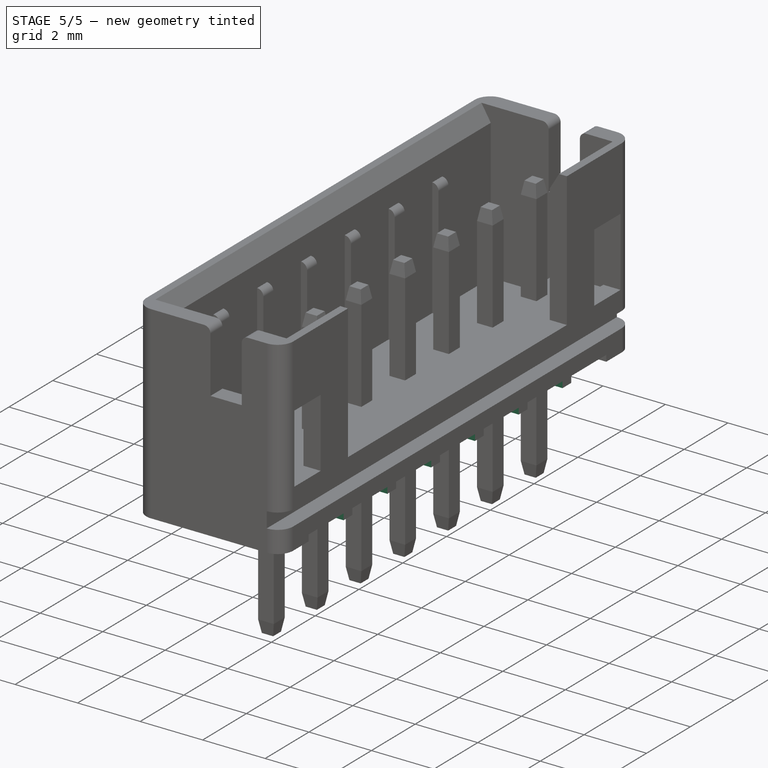
[diagram: stage 5 of 5 — iso view after this stage's code; geometry added in this stage tinted green]
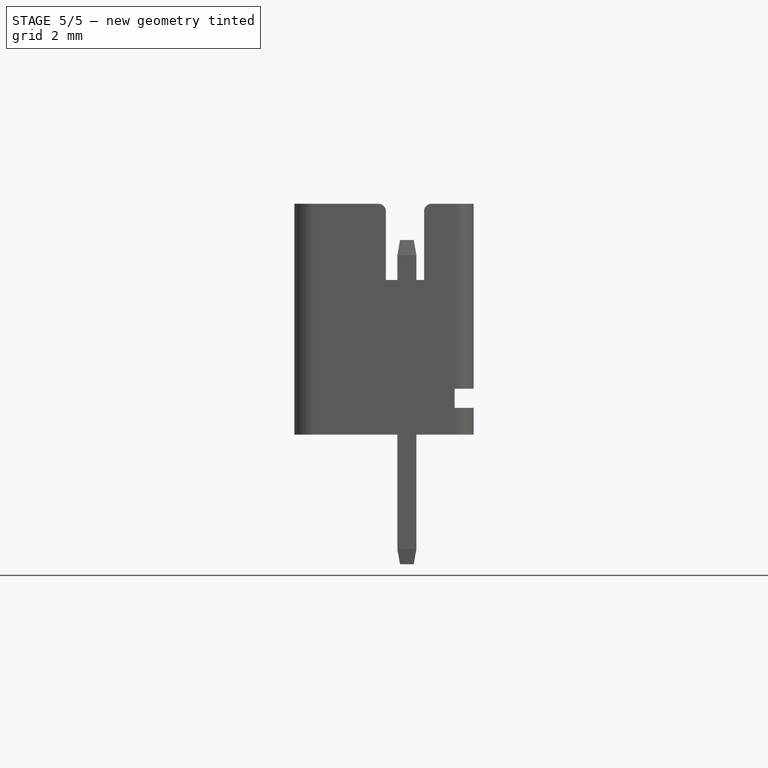
[diagram: stage 5 of 5 — front view after this stage's code; geometry added in this stage tinted green]
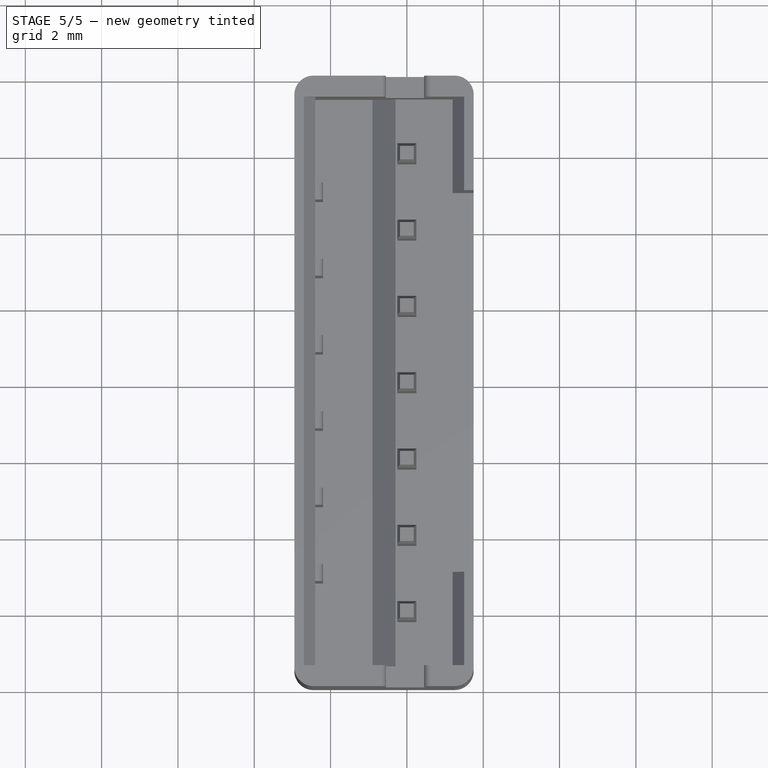
[diagram: stage 5 of 5 — top view after this stage's code; geometry added in this stage tinted green]
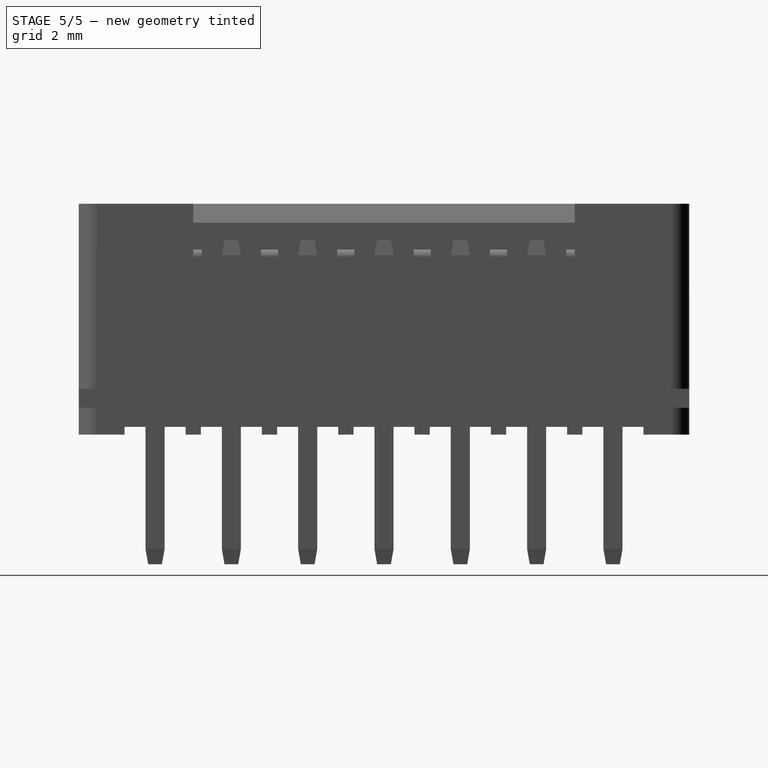
[diagram: stage 5 of 5 — right view after this stage's code; geometry added in this stage tinted green]
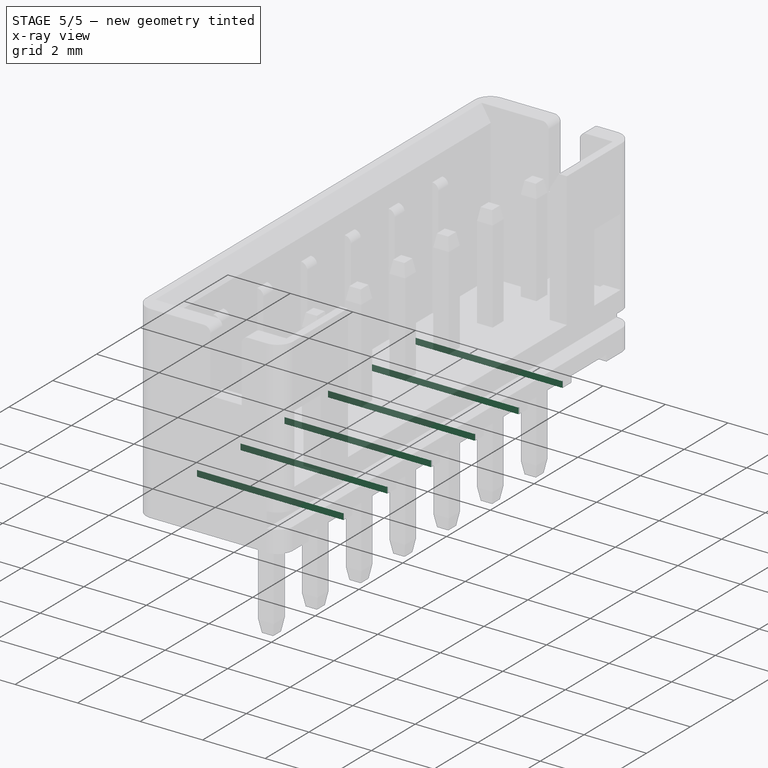
[diagram: stage 5 of 5 — x-ray composite at the iso view; earlier geometry ghosted, this stage's added geometry solid]
FEATURE [PartDesign::LinearPattern] LinearPattern001
  BaseFeature = -> Pocket007
  Direction = -> Sketch010 [H_Axis]
  Length = 12
  Mode = 0
  Occurrences = 7
  Offset = 2
  Originals = -> [Pocket007]
  Reversed = true
  Suppressed = false
  TransformMode = 0
  expr: Length = <<Master>>.length_pin
  expr: Occurrences = <<Master>>.pins
FEATURE [Sketcher::SketchObject] Sketch011
  ArcFitTolerance = 0
  AttachmentSupport = -> [XY_Plane]
  FullyConstrained = true
  MakeInternals = false
  MapMode = 5
  sketch-geometry (4):
    g0: LineSegment StartX=-0.25 StartY=0.25 StartZ=0 EndX=0.25 EndY=0.25 EndZ=0
    g1: LineSegment StartX=0.25 StartY=0.25 StartZ=0 EndX=0.25 EndY=-0.25 EndZ=0
    g2: LineSegment StartX=0.25 StartY=-0.25 StartZ=0 EndX=-0.25 EndY=-0.25 EndZ=0
    g3: LineSegment StartX=-0.25 StartY=-0.25 StartZ=0 EndX=-0.25 EndY=0.25 EndZ=0
  constraints (11):
    c: Coincident(g0,g1)
    c: Coincident(g1,g2)
    c: Coincident(g2,g3)
    c: Coincident(g3,g0)
    c: Horizontal(g0)
    c: Horizontal(g2)
    c: Vertical(g1)
    c: Vertical(g3)
    c: Equal(g1,g0)
    c: Symmetric(g0,g2,g-1)
    c: DistanceX(g0,g0) = 0.5
FEATURE [PartDesign::Pocket] Pocket008
  BaseFeature = -> LinearPattern001
  Direction = (0,0,-1)
  Length = 5
  Length2 = 5
  Midplane = true
  Profile = -> Sketch011
  ReferenceAxis = -> Sketch011 [N_Axis]
  Suppressed = false
  Type = 1
FEATURE [PartDesign::LinearPattern] LinearPattern002
  BaseFeature = -> Pocket008
  Direction = -> Sketch011 [V_Axis]
  Length = 12
  Mode = 0
  Occurrences = 7
  Offset = 2
  Originals = -> [Pocket008]
  Refine = true
  Reversed = true
  Suppressed = false
  TransformMode = 0
  expr: Length = <<Master>>.length_pin
  expr: Occurrences = <<Master>>.pins
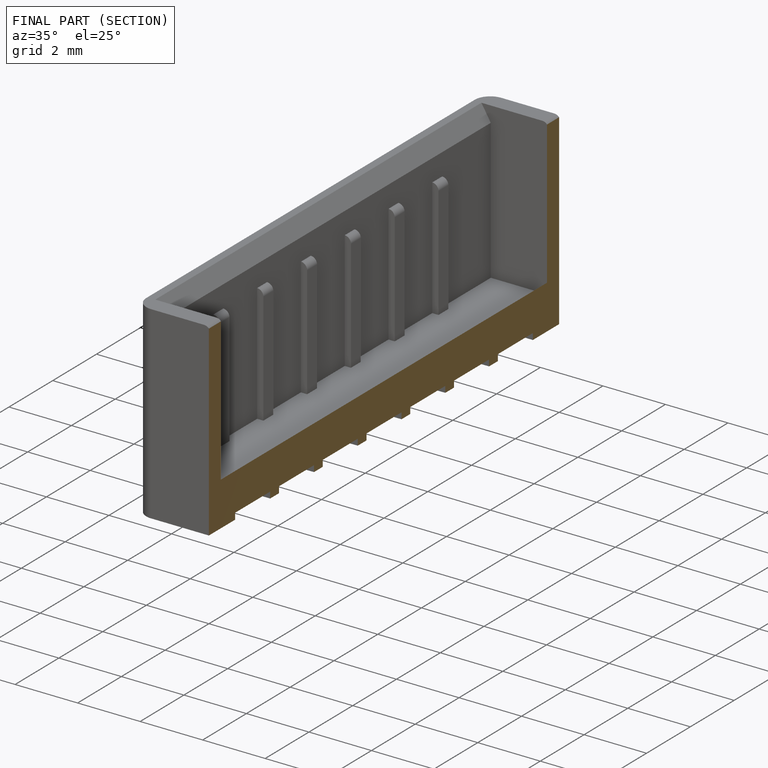
[diagram: finished part — half-section view (interior)]
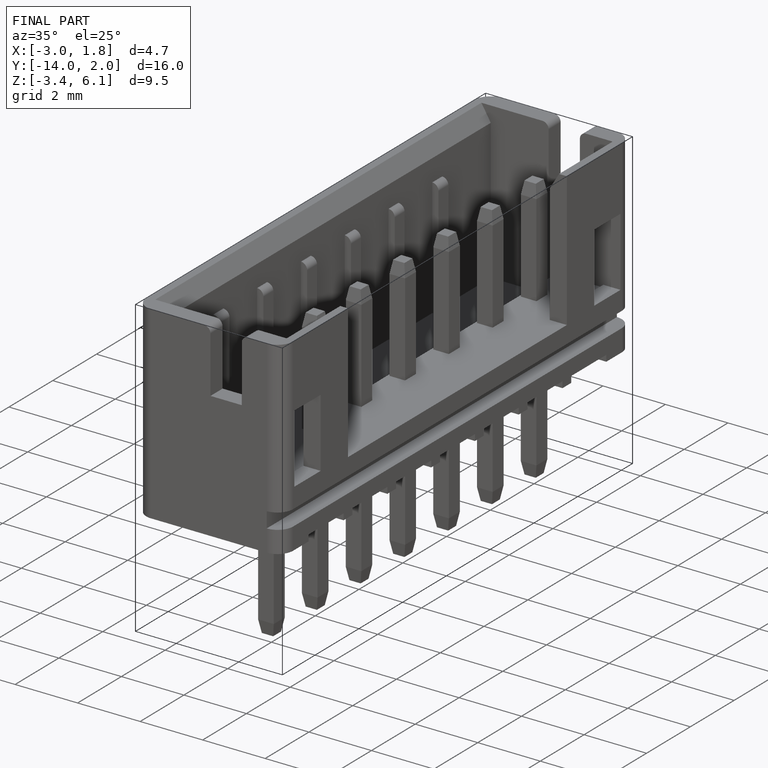
[diagram: finished part — iso view with bounding-box wireframe]
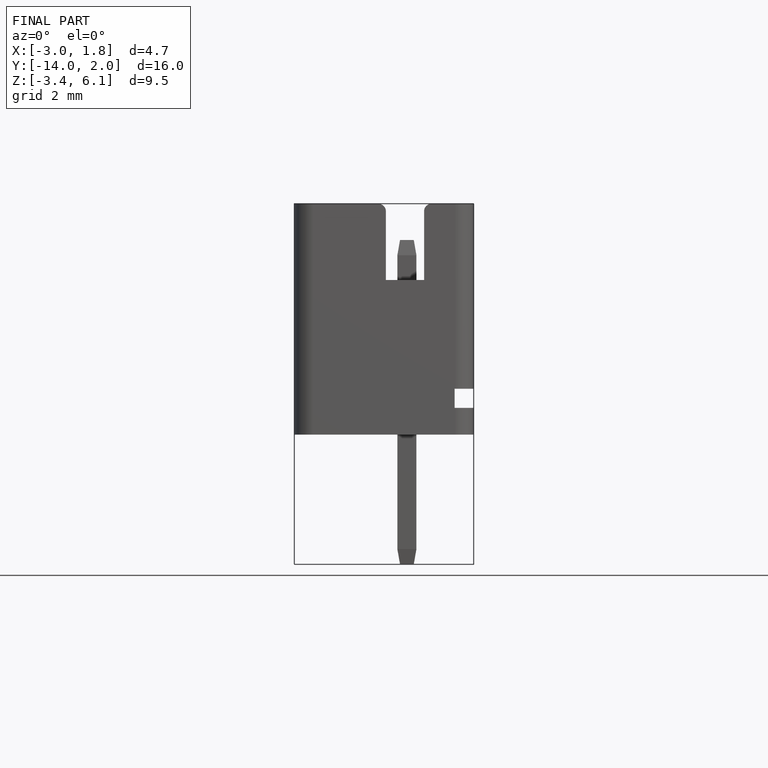
[diagram: finished part — front view with bounding-box wireframe]
